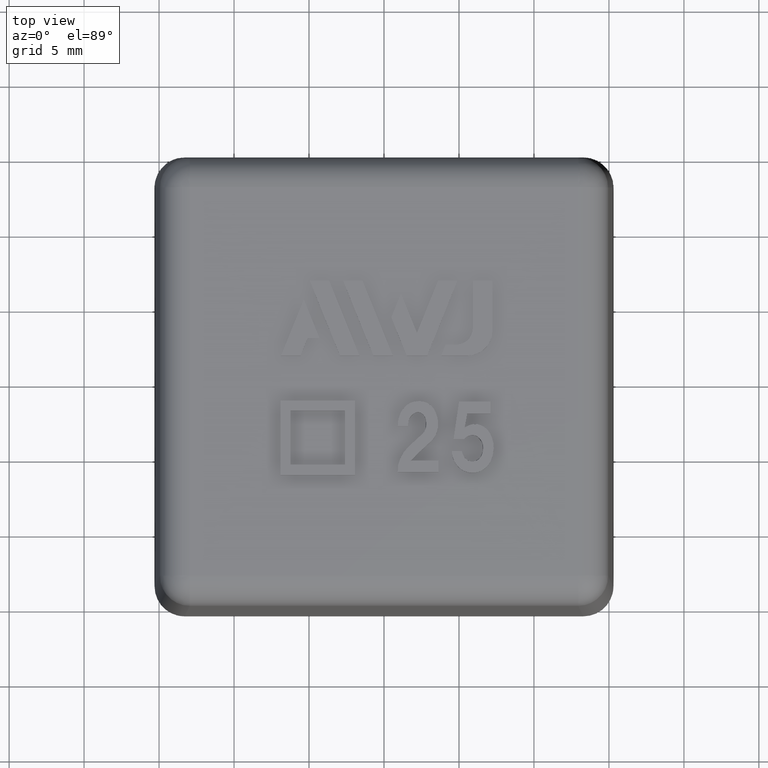
[diagram: clean part render]
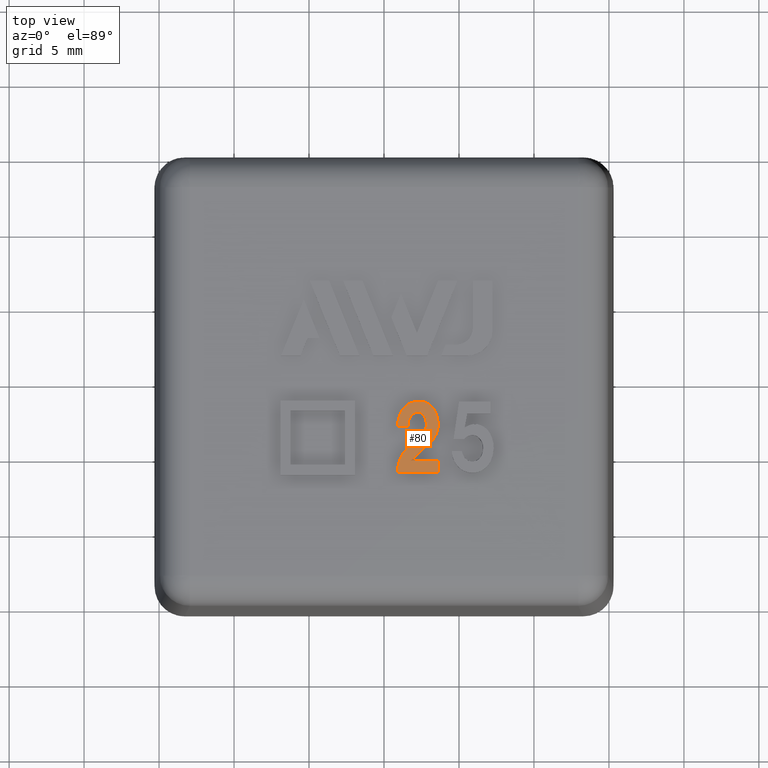
[diagram: same view with one face highlighted and labeled with its STEP entity id]
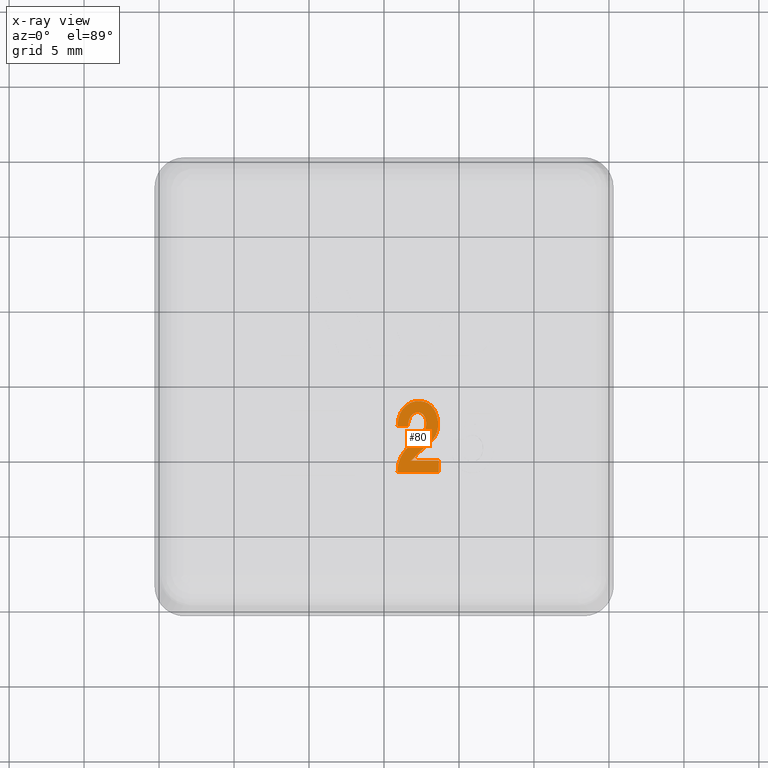
[diagram: x-ray of the same camera — body ghosted, the highlighted face saturated]
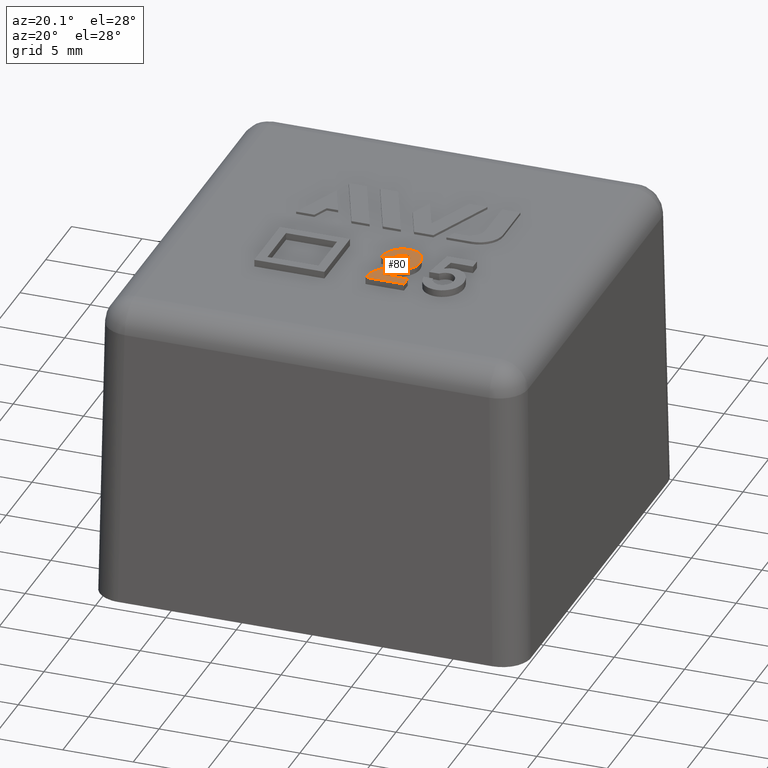
[diagram: same view with one face highlighted and labeled with its STEP entity id]
A machine part, top view. The second image highlights one B-rep face of the part: STEP entity #80.
The next image is the same camera in x-ray: the body ghosted, the highlighted face saturated — about 0% of this face is hidden behind the body in this view.
A second angle (auxiliary view) of the same face is appended — the face is thin or edge-on in the first view.
In plain terms, the highlighted planar face has unit normal (0, 0, 1).
Its self-contained STEP definition (entity closure, byte-faithful):
#80 = ADVANCED_FACE( '', ( #178 ), #179, .T. );
#178 = FACE_OUTER_BOUND( '', #358, .T. );
#179 = PLANE( '', #359 );
#358 = EDGE_LOOP( '', ( #616, #617, #618, #619, #620, #621 ) );
#359 = AXIS2_PLACEMENT_3D( '', #622, #623, #624 );
#616 = ORIENTED_EDGE( '', *, *, #1289, .F. );
#617 = ORIENTED_EDGE( '', *, *, #1290, .F. );
#618 = ORIENTED_EDGE( '', *, *, #1291, .F. );
#619 = ORIENTED_EDGE( '', *, *, #1292, .F. );
#620 = ORIENTED_EDGE( '', *, *, #1293, .F. );
#621 = ORIENTED_EDGE( '', *, *, #1294, .F. );
#622 = CARTESIAN_POINT( '', ( 3.54540160445121, -2.38842030146022, 22.5000000000000 ) );
#623 = DIRECTION( '', ( 0.000000000000000, 0.000000000000000, 1.00000000000000 ) );
#624 = DIRECTION( '', ( 0.000000000000000, -1.00000000000000, 0.000000000000000 ) );
#1289 = EDGE_CURVE( '', #1553, #1554, #1555, .T. );
#1290 = EDGE_CURVE( '', #1556, #1553, #1557, .T. );
#1291 = EDGE_CURVE( '', #1558, #1556, #1559, .T. );
#1292 = EDGE_CURVE( '', #1560, #1558, #1561, .T. );
#1293 = EDGE_CURVE( '', #1562, #1560, #1563, .T. );
#1294 = EDGE_CURVE( '', #1554, #1562, #1564, .T. );
#1553 = VERTEX_POINT( '', #2023 );
#1554 = VERTEX_POINT( '', #2024 );
#1555 = B_SPLINE_CURVE_WITH_KNOTS( '', 2, ( #2025, #2026, #2027, #2028, #2029, #2030, #2031, #2032, #2033, #2034, #2035, #2036, #2037 ), .UNSPECIFIED., .F., .F., ( 3, 2, 2, 2, 2, 2, 3 ), ( 0.000000000000000, 1.00000000000000, 2.00000000000000, 3.00000000000000, 4.00000000000000, 5.00000000000000, 6.00000000000000 ), .UNSPECIFIED. );
#1556 = VERTEX_POINT( '', #2038 );
#1557 = B_SPLINE_CURVE_WITH_KNOTS( '', 2, ( #2039, #2040, #2041 ), .UNSPECIFIED., .F., .F., ( 3, 3 ), ( 15.0000000000000, 16.0000000000000 ), .UNSPECIFIED. );
#1558 = VERTEX_POINT( '', #2042 );
#1559 = B_SPLINE_CURVE_WITH_KNOTS( '', 2, ( #2043, #2044, #2045, #2046, #2047, #2048, #2049, #2050, #2051, #2052, #2053, #2054, #2055 ), .UNSPECIFIED., .F., .F., ( 3, 2, 2, 2, 2, 2, 3 ), ( 9.00000000000000, 10.0000000000000, 11.0000000000000, 12.0000000000000, 13.0000000000000, 14.0000000000000, 15.0000000000000 ), .UNSPECIFIED. );
#1560 = VERTEX_POINT( '', #2056 );
#1561 = B_SPLINE_CURVE_WITH_KNOTS( '', 2, ( #2057, #2058, #2059 ), .UNSPECIFIED., .F., .F., ( 3, 3 ), ( 8.00000000000000, 9.00000000000000 ), .UNSPECIFIED. );
#1562 = VERTEX_POINT( '', #2060 );
#1563 = B_SPLINE_CURVE_WITH_KNOTS( '', 2, ( #2061, #2062, #2063 ), .UNSPECIFIED., .F., .F., ( 3, 3 ), ( 7.00000000000000, 8.00000000000000 ), .UNSPECIFIED. );
#1564 = B_SPLINE_CURVE_WITH_KNOTS( '', 2, ( #2064, #2065, #2066 ), .UNSPECIFIED., .F., .F., ( 3, 3 ), ( 6.00000000000000, 7.00000000000000 ), .UNSPECIFIED. );
#2023 = CARTESIAN_POINT( '', ( 0.906800568181774, -3.02537272727275, 22.5000000000000 ) );
#2024 = CARTESIAN_POINT( '', ( 1.79316420454541, -5.32082727272729, 22.5000000000000 ) );
#2025 = CARTESIAN_POINT( '', ( 0.906800568181774, -3.02537272727275, 22.5000000000000 ) );
#2026 = CARTESIAN_POINT( '', ( 0.906800568181774, -2.25264545454547, 22.5000000000000 ) );
#2027 = CARTESIAN_POINT( '', ( 1.32719233111497, -1.78554349573081, 22.5000000000000 ) );
#2028 = CARTESIAN_POINT( '', ( 1.72498238636359, -1.34355454545456, 22.5000000000000 ) );
#2029 = CARTESIAN_POINT( '', ( 2.29316420454541, -1.34355454545456, 22.5000000000000 ) );
#2030 = CARTESIAN_POINT( '', ( 3.27043693181814, -1.34355454545456, 22.5000000000000 ) );
#2031 = CARTESIAN_POINT( '', ( 3.54540160445121, -2.38842030146022, 22.5000000000000 ) );
#2032 = CARTESIAN_POINT( '', ( 3.83861874999996, -3.50264545454547, 22.5000000000000 ) );
#2033 = CARTESIAN_POINT( '', ( 2.89088973660845, -4.28364436372922, 22.5000000000000 ) );
#2034 = CARTESIAN_POINT( '', ( 2.61134602272723, -4.51400909090911, 22.5000000000000 ) );
#2035 = CARTESIAN_POINT( '', ( 2.33974642556982, -4.75392206839815, 22.5000000000000 ) );
#2036 = CARTESIAN_POINT( '', ( 1.92952784090905, -5.11628181818184, 22.5000000000000 ) );
#2037 = CARTESIAN_POINT( '', ( 1.79316420454541, -5.32082727272729, 22.5000000000000 ) );
#2038 = CARTESIAN_POINT( '', ( 1.58861874999996, -3.02537272727275, 22.5000000000000 ) );
#2039 = CARTESIAN_POINT( '', ( 1.58861874999996, -3.02537272727275, 22.5000000000000 ) );
#2040 = CARTESIAN_POINT( '', ( 1.24770965909087, -3.02537272727275, 22.5000000000000 ) );
#2041 = CARTESIAN_POINT( '', ( 0.906800568181774, -3.02537272727275, 22.5000000000000 ) );
#2042 = CARTESIAN_POINT( '', ( 0.906800568181774, -6.07082727272729, 22.5000000000000 ) );
#2043 = CARTESIAN_POINT( '', ( 0.906800568181774, -6.07082727272729, 22.5000000000000 ) );
#2044 = CARTESIAN_POINT( '', ( 0.884073295454503, -5.02537272727275, 22.5000000000000 ) );
#2045 = CARTESIAN_POINT( '', ( 1.74900726188984, -4.27687217939601, 22.5000000000000 ) );
#2046 = CARTESIAN_POINT( '', ( 2.06589147727268, -4.00264545454547, 22.5000000000000 ) );
#2047 = CARTESIAN_POINT( '', ( 2.38229674590851, -3.72787245809857, 22.5000000000000 ) );
#2048 = CARTESIAN_POINT( '', ( 2.92952784090905, -3.25264545454547, 22.5000000000000 ) );
#2049 = CARTESIAN_POINT( '', ( 2.79715619700891, -2.62020315591146, 22.5000000000000 ) );
#2050 = CARTESIAN_POINT( '', ( 2.72498238636359, -2.27537272727275, 22.5000000000000 ) );
#2051 = CARTESIAN_POINT( '', ( 2.47777958916080, -2.13411398601400, 22.5000000000000 ) );
#2052 = CARTESIAN_POINT( '', ( 2.24770965909087, -2.00264545454547, 22.5000000000000 ) );
#2053 = CARTESIAN_POINT( '', ( 1.97608990828330, -2.16360530687588, 22.5000000000000 ) );
#2054 = CARTESIAN_POINT( '', ( 1.63407329545450, -2.36628181818184, 22.5000000000000 ) );
#2055 = CARTESIAN_POINT( '', ( 1.58861874999996, -3.02537272727275, 22.5000000000000 ) );
#2056 = CARTESIAN_POINT( '', ( 3.63407329545450, -6.07082727272729, 22.5000000000000 ) );
#2057 = CARTESIAN_POINT( '', ( 3.63407329545450, -6.07082727272729, 22.5000000000000 ) );
#2058 = CARTESIAN_POINT( '', ( 2.27043693181814, -6.07082727272729, 22.5000000000000 ) );
#2059 = CARTESIAN_POINT( '', ( 0.906800568181774, -6.07082727272729, 22.5000000000000 ) );
#2060 = CARTESIAN_POINT( '', ( 3.63407329545450, -5.32082727272729, 22.5000000000000 ) );
#2061 = CARTESIAN_POINT( '', ( 3.63407329545450, -5.32082727272729, 22.5000000000000 ) );
#2062 = CARTESIAN_POINT( '', ( 3.63407329545450, -5.69582727272729, 22.5000000000000 ) );
#2063 = CARTESIAN_POINT( '', ( 3.63407329545450, -6.07082727272729, 22.5000000000000 ) );
#2064 = CARTESIAN_POINT( '', ( 1.79316420454541, -5.32082727272729, 22.5000000000000 ) );
#2065 = CARTESIAN_POINT( '', ( 2.71361874999996, -5.32082727272729, 22.5000000000000 ) );
#2066 = CARTESIAN_POINT( '', ( 3.63407329545450, -5.32082727272729, 22.5000000000000 ) );